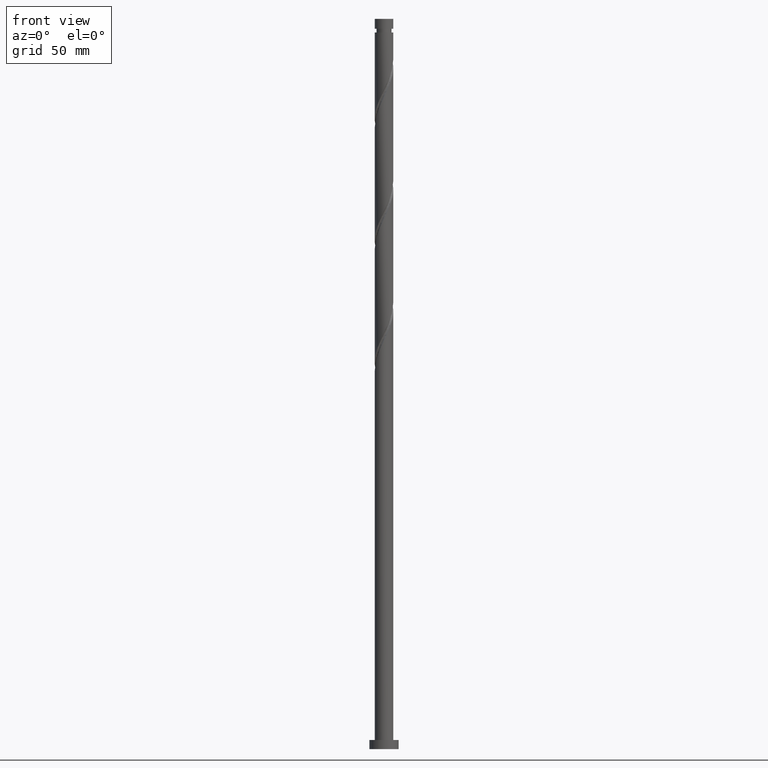
[diagram: clean part render]
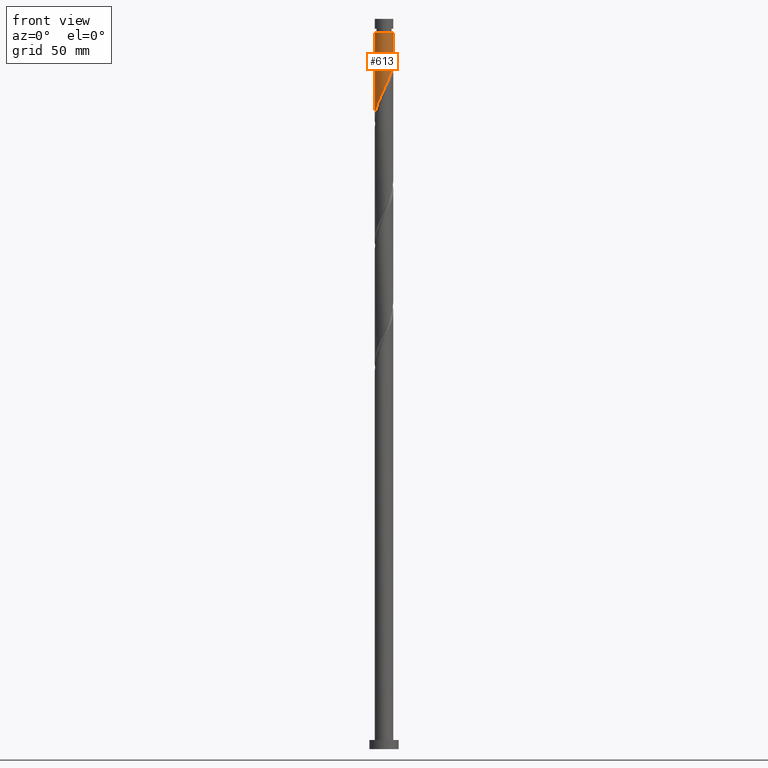
[diagram: same view with one face highlighted and labeled with its STEP entity id]
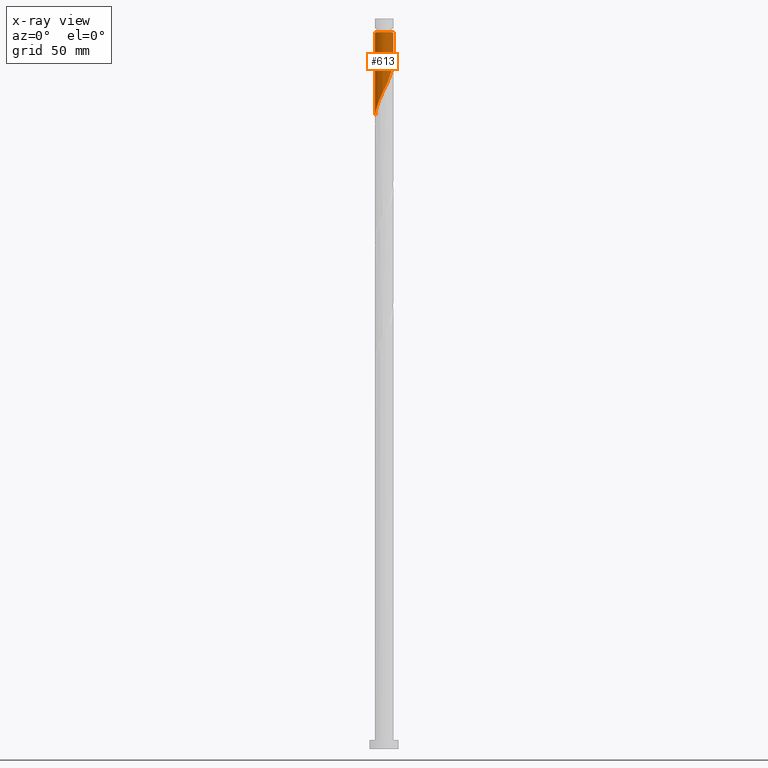
[diagram: x-ray of the same camera — body ghosted, the highlighted face saturated]
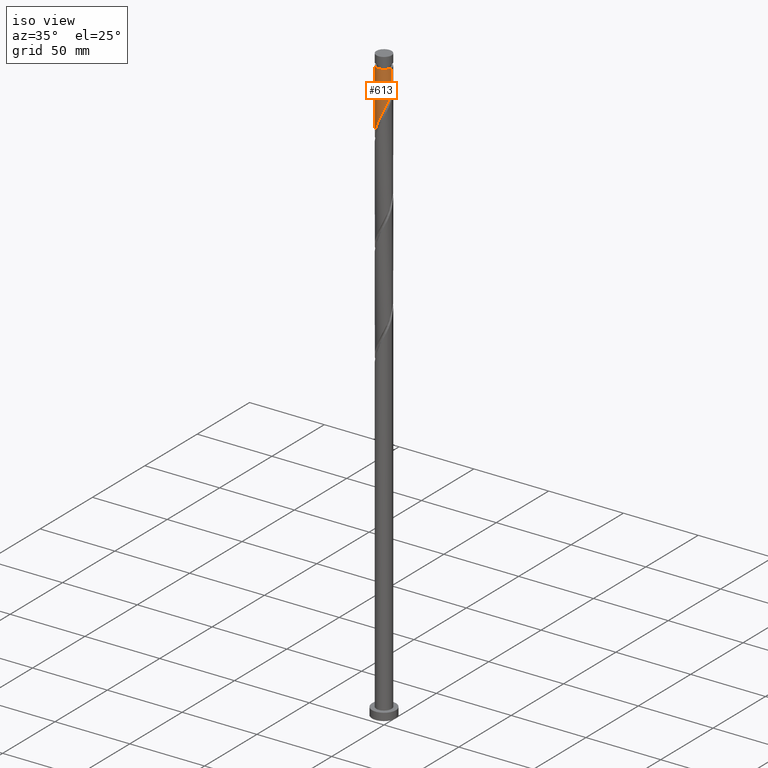
[diagram: same view with one face highlighted and labeled with its STEP entity id]
A machine part, front view. The second image highlights one B-rep face of the part: STEP entity #613.
The next image is the same camera in x-ray: the body ghosted, the highlighted face saturated — about 0% of this face is hidden behind the body in this view.
A second angle (iso view) of the same face is appended — the face is thin or edge-on in the first view.
In plain terms, the highlighted cylindrical surface (edge-blend (fillet) strip) has radius 5.1 mm, axis along (-0, -0, -1).
Its self-contained STEP definition (entity closure, byte-faithful):
#43 = CARTESIAN_POINT ( 'NONE',  ( 4.703541288989194769, -2.043044105940181154, 373.6328545039818891 ) ) ;
#50 = EDGE_CURVE ( 'NONE', #171, #591, #596, .T. ) ;
#69 = EDGE_LOOP ( 'NONE', ( #931, #1262, #1040, #216 ) ) ;
#98 = DIRECTION ( 'NONE',  ( -1.000000000000000000, 0.000000000000000000, 0.000000000000000000 ) ) ;
#106 = AXIS2_PLACEMENT_3D ( 'NONE', #1823, #1805, #98 ) ;
#166 = EDGE_CURVE ( 'NONE', #1558, #1641, #1200, .T. ) ;
#171 = VERTEX_POINT ( 'NONE', #437 ) ;
#198 = CARTESIAN_POINT ( 'NONE',  ( 5.025530381258454860, -1.020477468193842663, 375.8550767262040608 ) ) ;
#216 = ORIENTED_EDGE ( 'NONE', *, *, #50, .F. ) ;
#233 = DIRECTION ( 'NONE',  ( -0.000000000000000000, -0.000000000000000000, -1.000000000000000000 ) ) ;
#249 = CARTESIAN_POINT ( 'NONE',  ( 0.04643316485371448699, -5.099788619266650613, 361.4106322817596606 ) ) ;
#357 = CARTESIAN_POINT ( 'NONE',  ( 1.629005779183731795, -4.862475711757238805, 364.7439656150928613 ) ) ;
#395 = CARTESIAN_POINT ( 'NONE',  ( -5.099999999999966782, 0.000000000000000000, 392.5217433928706896 ) ) ;
#404 = CARTESIAN_POINT ( 'NONE',  ( -1.540198153706608508, -4.891331058450428593, 358.0772989484262325 ) ) ;
#413 = CARTESIAN_POINT ( 'NONE',  ( -4.121098741290859735, -3.051864191043557994, 351.4106322817596606 ) ) ;
#427 = CARTESIAN_POINT ( 'NONE',  ( -2.031852096560608167, -4.677774797668464934, 356.9661878373152035 ) ) ;
#437 = CARTESIAN_POINT ( 'NONE',  ( 5.099999999999999645, 9.716470023432427565E-16, 377.9805199697256057 ) ) ;
#438 = AXIS2_PLACEMENT_3D ( 'NONE', #1374, #1978, #563 ) ;
#508 = CARTESIAN_POINT ( 'NONE',  ( 3.465917878084596282, -3.779516257197027773, 369.1884100595373184 ) ) ;
#516 = VECTOR ( 'NONE', #598, 1000.000000000000000 ) ;
#552 = CARTESIAN_POINT ( 'NONE',  ( -5.100000000000001421, 0.000000000000000000, 400.0000000000000000 ) ) ;
#563 = DIRECTION ( 'NONE',  ( -1.000000000000000000, 0.000000000000000000, 0.000000000000000000 ) ) ;
#578 = CARTESIAN_POINT ( 'NONE',  ( -4.393329915788831030, -2.590106609974752505, 350.2995211706485179 ) ) ;
#591 = VERTEX_POINT ( 'NONE', #1340 ) ;
#596 =( BOUNDED_CURVE ( )  B_SPLINE_CURVE ( 2, ( #952, #1255, #1149, #198, #1300, #43, #1913, #821, #1593, #508, #1749, #673, #1456, #357, #721, #1648, #249, #1992, #1974, #404, #427, #907, #1031, #1657, #1205, #413, #578, #888, #1842, #879, #1076, #599, #1215 ),
 .UNSPECIFIED., .F., .T. ) 
 B_SPLINE_CURVE_WITH_KNOTS ( ( 3, 2, 2, 2, 2, 2, 2, 2, 2, 2, 2, 2, 2, 2, 2, 2, 3 ),
 ( 0.3045286012773110729, 0.3083333333333333481, 0.3166666666666666519, 0.3250000000000000111, 0.3333333333333333148, 0.3416666666666666741, 0.3499999999999999778, 0.3583333333333333370, 0.3666666666666666408, 0.3750000000000000000, 0.3833333333333333592, 0.3916666666666666630, 0.4000000000000000222, 0.4083333333333333259, 0.4166666666666666852, 0.4249999999999999889, 0.4295286012773115170 ),
 .UNSPECIFIED. ) 
 CURVE ( )  GEOMETRIC_REPRESENTATION_ITEM ( )  RATIONAL_B_SPLINE_CURVE ( ( 0.9066196499552228172, 0.9068171577856354304, 0.9090909090909344847, 0.9041108139711828695, 0.9090909090909344847, 0.9041108139711828695, 0.9090909090909344847, 0.9041108139711828695, 0.9090909090909344847, 0.9041108139711828695, 0.9090909090909344847, 0.9041108139711828695, 0.9090909090909344847, 0.9041108139711828695, 0.9090909090909344847, 0.9041108139711828695, 0.9090909090909344847, 0.9041108139711828695, 0.9090909090909344847, 0.9041108139711828695, 0.9090909090909344847, 0.9041108139711828695, 0.9090909090909344847, 0.9041108139711828695, 0.9090909090909344847, 0.9041108139711828695, 0.9090909090909344847, 0.9041108139711828695, 0.9090909090909344847, 0.9041108139711828695, 0.9090909090909344847, 0.9063845652764817018, 0.9066196499552229282 ) ) 
 REPRESENTATION_ITEM ( '' )  );
#598 = DIRECTION ( 'NONE',  ( -0.000000000000000000, -0.000000000000000000, -1.000000000000000000 ) ) ;
#599 = CARTESIAN_POINT ( 'NONE',  ( -5.100000000000000533, -0.2905660609767997116, 345.2527779457766997 ) ) ;
#613 = ADVANCED_FACE ( 'NONE', ( #873 ), #1514, .T. ) ;
#673 = CARTESIAN_POINT ( 'NONE',  ( 2.604373641281805707, -4.417529605179755237, 366.9661878373151467 ) ) ;
#702 = CARTESIAN_POINT ( 'NONE',  ( 5.099999999999966782, 6.245698675651480131E-16, 392.5217433928706896 ) ) ;
#721 = CARTESIAN_POINT ( 'NONE',  ( 1.105724163441033081, -4.978692004370487645, 363.6328545039817755 ) ) ;
#821 = CARTESIAN_POINT ( 'NONE',  ( 4.175984872295889438, -2.976319912643619059, 371.4106322817596038 ) ) ;
#873 = FACE_OUTER_BOUND ( 'NONE', #69, .T. ) ;
#879 = CARTESIAN_POINT ( 'NONE',  ( -5.006116031791203902, -1.111814801253403262, 346.9661878373151467 ) ) ;
#888 = CARTESIAN_POINT ( 'NONE',  ( -4.665561090286799661, -2.128349028905950568, 349.1884100595374889 ) ) ;
#907 = CARTESIAN_POINT ( 'NONE',  ( -2.523506039414606050, -4.464218536886502164, 355.8550767262040608 ) ) ;
#931 = ORIENTED_EDGE ( 'NONE', *, *, #1513, .F. ) ;
#952 = CARTESIAN_POINT ( 'NONE',  ( 5.099999999999999645, 9.716470023432427565E-16, 377.9805199697256057 ) ) ;
#1000 = LINE ( 'NONE', #552, #516 ) ;
#1017 = CARTESIAN_POINT ( 'NONE',  ( 5.100000000000001421, 6.245698675651501825E-16, 400.0000000000000000 ) ) ;
#1031 = CARTESIAN_POINT ( 'NONE',  ( -2.960015320744664002, -4.153108390224947932, 354.7439656150929181 ) ) ;
#1040 = ORIENTED_EDGE ( 'NONE', *, *, #1157, .T. ) ;
#1076 = CARTESIAN_POINT ( 'NONE',  ( -5.066997856243808052, -0.5792518664800759831, 345.8550767262040040 ) ) ;
#1149 = CARTESIAN_POINT ( 'NONE',  ( 5.076705030977432642, -0.4868942682435490332, 376.9661878373150898 ) ) ;
#1157 = EDGE_CURVE ( 'NONE', #1641, #591, #1000, .T. ) ;
#1200 = CIRCLE ( 'NONE', #106, 5.099999999999966782 ) ;
#1205 = CARTESIAN_POINT ( 'NONE',  ( -3.758811671682789957, -3.446931217303477180, 352.5217433928707464 ) ) ;
#1215 = CARTESIAN_POINT ( 'NONE',  ( -5.100000000000000533, 3.901536424793636099E-15, 344.6471866363921777 ) ) ;
#1255 = CARTESIAN_POINT ( 'NONE',  ( 5.100000000000001421, -0.2440043963624034251, 377.4719714441615679 ) ) ;
#1262 = ORIENTED_EDGE ( 'NONE', *, *, #166, .T. ) ;
#1300 = CARTESIAN_POINT ( 'NONE',  ( 4.864535835123822594, -1.531760787067013796, 374.7439656150929181 ) ) ;
#1340 = CARTESIAN_POINT ( 'NONE',  ( -5.100000000000000533, 3.901536424793636099E-15, 344.6471866363921777 ) ) ;
#1348 = VECTOR ( 'NONE', #233, 1000.000000000000000 ) ;
#1374 = CARTESIAN_POINT ( 'NONE',  ( 0.000000000000000000, 0.000000000000000000, 400.0000000000000000 ) ) ;
#1456 = CARTESIAN_POINT ( 'NONE',  ( 2.116689710232769972, -4.640002658468494801, 365.8550767262040608 ) ) ;
#1513 = EDGE_CURVE ( 'NONE', #1558, #171, #1780, .T. ) ;
#1514 = CYLINDRICAL_SURFACE ( 'NONE', #438, 5.100000000000001421 ) ;
#1558 = VERTEX_POINT ( 'NONE', #702 ) ;
#1593 = CARTESIAN_POINT ( 'NONE',  ( 3.820951375190243748, -3.377918084920323860, 370.2995211706485179 ) ) ;
#1641 = VERTEX_POINT ( 'NONE', #395 ) ;
#1648 = CARTESIAN_POINT ( 'NONE',  ( 0.5824425476983365879, -5.094908296983735596, 362.5217433928706896 ) ) ;
#1657 = CARTESIAN_POINT ( 'NONE',  ( -3.396524602074721955, -3.841998243563394144, 353.6328545039818323 ) ) ;
#1749 = CARTESIAN_POINT ( 'NONE',  ( 3.035145759683200772, -4.098522931188392171, 368.0772989484262894 ) ) ;
#1780 = LINE ( 'NONE', #1017, #1348 ) ;
#1805 = DIRECTION ( 'NONE',  ( -0.000000000000000000, -0.000000000000000000, -1.000000000000000000 ) ) ;
#1823 = CARTESIAN_POINT ( 'NONE',  ( 0.000000000000000000, 0.000000000000000000, 392.5217433928706896 ) ) ;
#1842 = CARTESIAN_POINT ( 'NONE',  ( -4.835838561039001782, -1.620081915079675916, 348.0772989484262894 ) ) ;
#1913 = CARTESIAN_POINT ( 'NONE',  ( 4.439763080642545212, -2.509682009291898552, 372.5217433928707464 ) ) ;
#1974 = CARTESIAN_POINT ( 'NONE',  ( -1.014887185848756923, -4.998000000000000220, 359.1884100595374321 ) ) ;
#1978 = DIRECTION ( 'NONE',  ( -0.000000000000000000, -0.000000000000000000, -1.000000000000000000 ) ) ;
#1992 = CARTESIAN_POINT ( 'NONE',  ( -0.4895762179909078915, -5.104668941549565631, 360.2995211706484611 ) ) ;